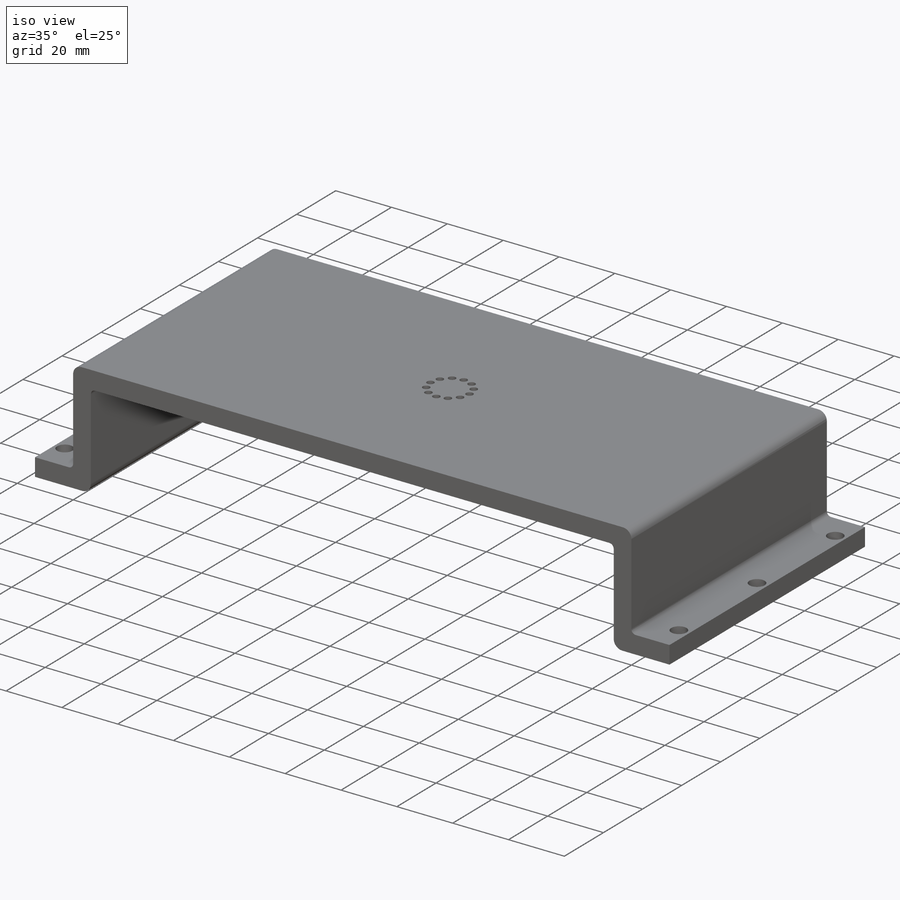
[diagram: iso view]
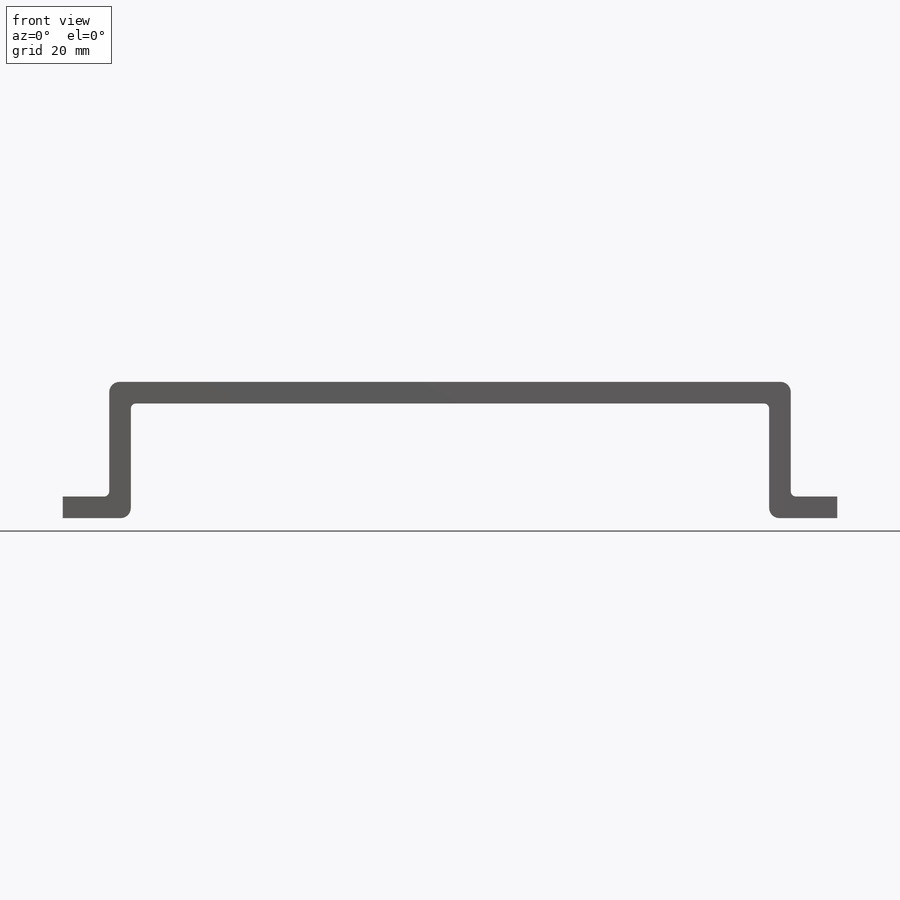
[diagram: front view]
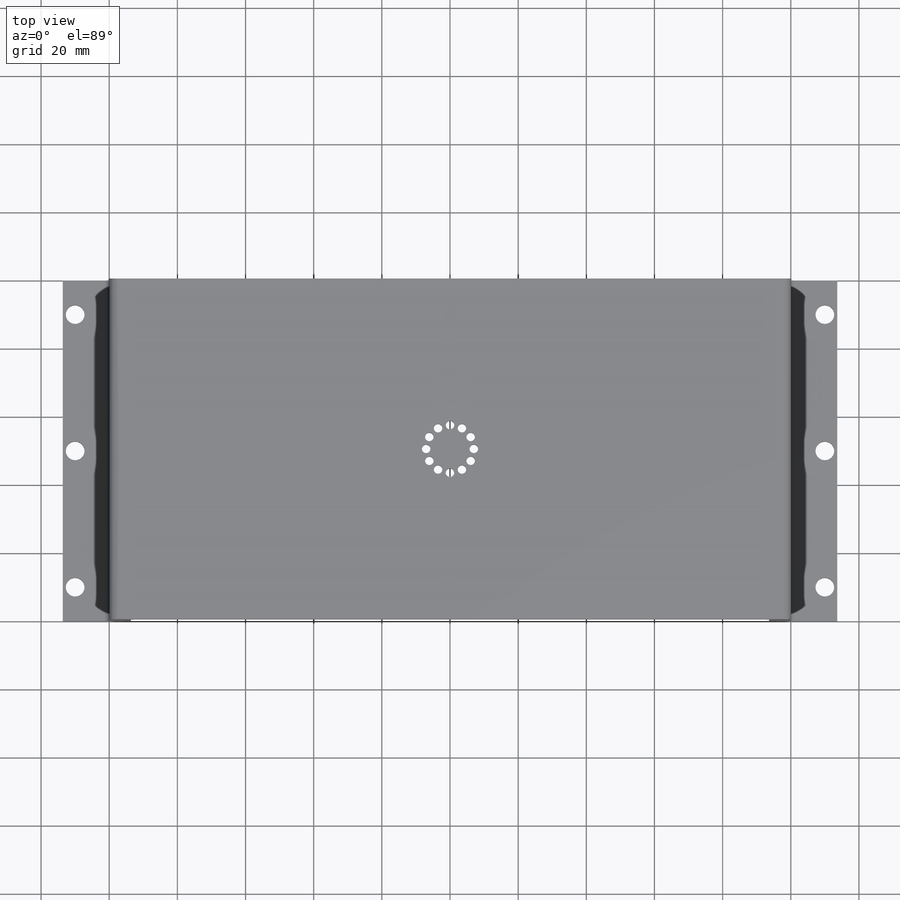
[diagram: top view]
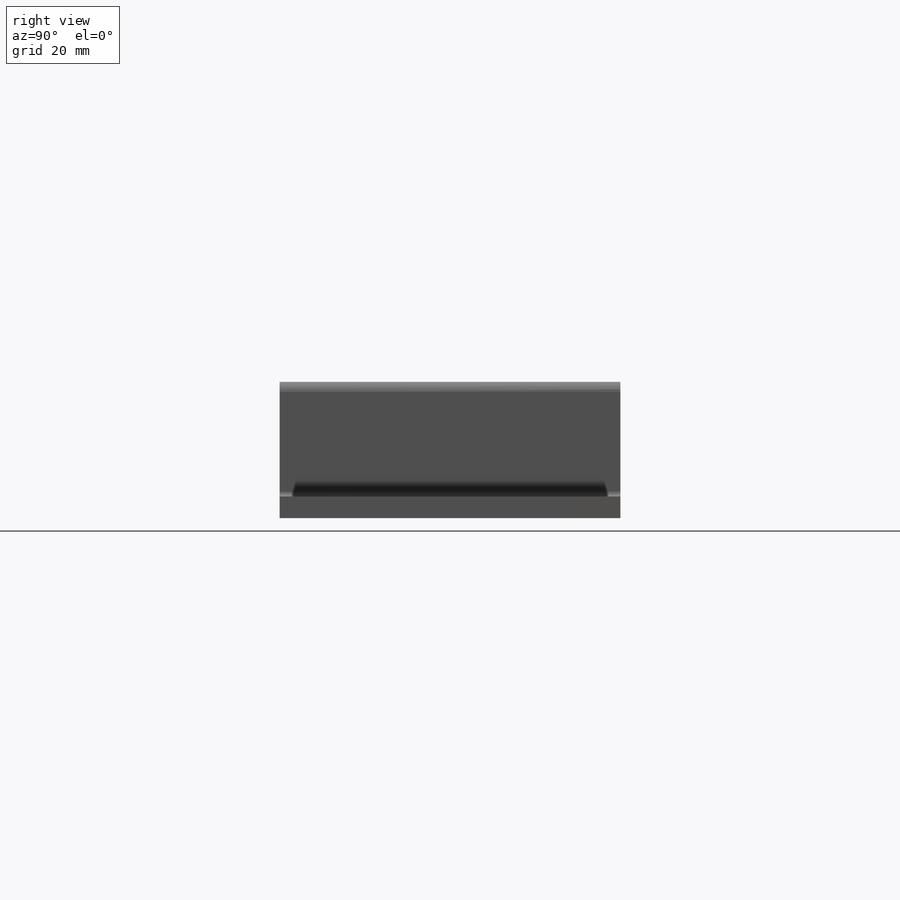
[diagram: right view]
SOLIDWORKS PART (.sldprt)
format: sldprt  version: not decoded by parser v0  size: 301,568 bytes
history: native  units: mm
features: sketch x5, hole x2, material x1, extrude x1, fillet x1, pattern_circular x1 (+13 scaffold rows collapsed)
feature tree (24):
  scaffold x13  (default folders/planes/origin — collapsed)
  material  "Material <not specified>"
  sketch  "Sketch1"  dims[D1=6.35mm D2=6.35mm D3=6.35mm D4=100.0mm D5=20.0mm D6=40.0mm]
  extrude  "Boss-Extrude1"  Depth=100mm
  fillet  "Fillet1"  Radius=3mm
  hole  "Ø2.5mm Dowel Hole1"  Diameter=2.5mm Depth=10mm
  sketch  "Sketch4"  dims[c1.D1=14.0mm c1.D2=14.0mm c1.D3=~48.928694mm c2.D2=7.0mm]
  sketch  "Sketch2"  dims[hole-wizard template sketch: 50 standard entries collapsed; hole parameters above]
  pattern_circular  "CirPattern3"  Count=6 Angle=150deg
  hole  "Ø5.5 (5.5) Diameter Hole1"  Diameter=5.5mm Depth=6.35mm
  sketch  "Sketch6"  dims[D1=40.0mm D2=40.0mm D3=110.0mm]
  sketch  "Sketch5"  dims[hole-wizard template sketch: 60 standard entries collapsed; hole parameters kept: c18.Thru Hole Depth=6.35mm]
decode coverage: 10 of 10 modeling features carry decoded parameters
note: ~ marks probable driven/reference dimensions
note: suppression state not decoded; provenance and decode notes live in map.json
